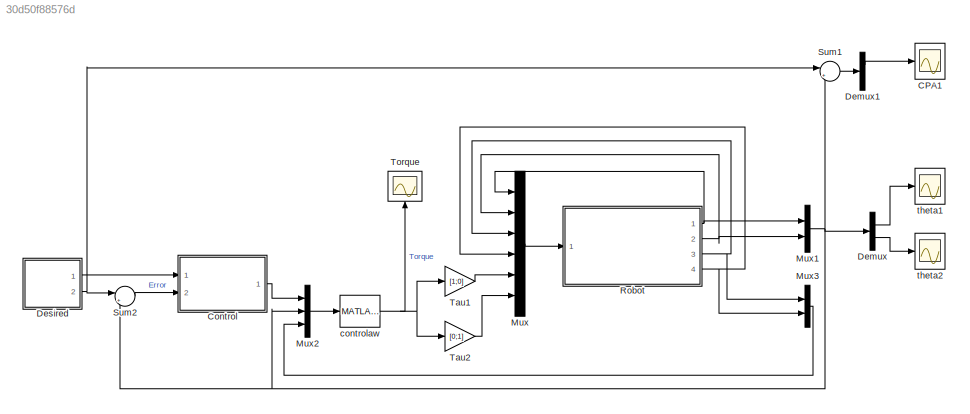
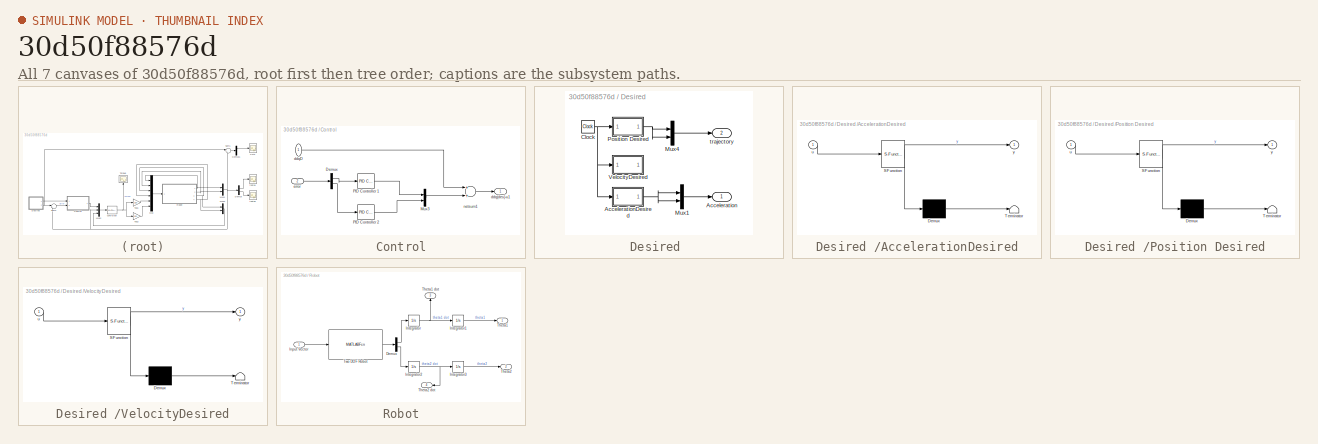
[diagram: thumbnail index - all 7 canvases of the model, root first then tree order]
MODEL slx_30d50f88576d
KIND model
BLOCK [Scope] CPA1
  DataFormat = StructureWithTime
  Floating = off
  NumInputPorts = 1
  Ports = [1]
  SampleTime = 0
  SaveName = ScopeData4
  ShowLegends = off
  YMax = 100
  YMin = -1400
BLOCK [SubSystem] Control
  FunctionWithSeparateData = off
  MaskHideContents = off
  MinAlgLoopOccurrences = off
  Opaque = off
  Ports = [2, 1]
  PropExecContextOutsideSubsystem = off
  RTWSystemCode = Auto
  RequestExecContextInheritance = off
BLOCK [Demux] Control/Demux
  DisplayOption = bar
  Outputs = 2
  Ports = [1, 2]
BLOCK [Mux] Control/Mux3
  DisplayOption = bar
  Inputs = 2
  Ports = [2, 1]
BLOCK [Reference] Control/PID Controller 1  REF=simulink/Continuous/PID Controller
  AntiWindupMode = none
  Controller = PID
  D = 3000
  DOutDataTypeStr = Inherit: Inherit via internal rule
  DOutMax = []
  DOutMin = []
  DParamDataTypeStr = Inherit: Inherit via internal rule
  DParamMax = []
  DParamMin = []
  ExternalReset = none
  FilterContinuousStateAttributes = ''
  FilterMethod = Forward Euler
  FilterOutDataTypeStr = Inherit: Inherit via internal rule
  FilterOutMax = []
  FilterOutMin = []
  FilterRTWStateStorageClass = Auto
  FilterStateMustResolveToSignalObject = off
  Form = Parallel
  I = 800
  IOutDataTypeStr = Inherit: Inherit via internal rule
  IOutMax = []
  IOutMin = []
  IParamDataTypeStr = Inherit: Inherit via internal rule
  IParamMax = []
  IParamMin = []
  IgnoreLimit = off
  InitialConditionForFilter = 0
  InitialConditionForIntegrator = 0
  InitialConditionSource = internal
  IntegratorContinuousStateAttributes = ''
  IntegratorMethod = Forward Euler
  IntegratorOutDataTypeStr = Inherit: Inherit via internal rule
  IntegratorOutMax = []
  IntegratorOutMin = []
  IntegratorRTWStateStorageClass = Auto
  IntegratorStateMustResolveToSignalObject = off
  Kb = 1
  KbOutDataTypeStr = Inherit: Inherit via internal rule
  KbOutMax = []
  KbOutMin = []
  KbParamDataTypeStr = Inherit: Inherit via internal rule
  KbParamMax = []
  KbParamMin = []
  Kt = 1
  KtOutDataTypeStr = Inherit: Inherit via internal rule
  KtOutMax = []
  KtOutMin = []
  KtParamDataTypeStr = Inherit: Inherit via internal rule
  KtParamMax = []
  KtParamMin = []
  LimitOutput = off
  LinearizeAsGain = on
  LockScale = off
  LowerSaturationLimit = -inf
  N = 287.53756707028
  NOutDataTypeStr = Inherit: Inherit via internal rule
  NOutMax = []
  NOutMin = []
  NParamDataTypeStr = Inherit: Inherit via internal rule
  NParamMax = []
  NParamMin = []
  P = 1500
  POutDataTypeStr = Inherit: Inherit via internal rule
  POutMax = []
  POutMin = []
  PParamDataTypeStr = Inherit: Inherit via internal rule
  PParamMax = []
  PParamMin = []
  Ports = [1, 1]
  RndMeth = Floor
  SampleTime = 1
  SaturateOnIntegerOverflow = off
  SaturationOutDataTypeStr = Inherit: Same as input
  SaturationOutMax = []
  SaturationOutMin = []
  SourceBlock = simulink/Continuous/PID Controller
  SourceType = PID 1dof
  SumAccumDataTypeStr = Inherit: Inherit via internal rule
  SumDAccumDataTypeStr = Inherit: Inherit via internal rule
  SumDOutDataTypeStr = Inherit: Inherit via internal rule
  SumDOutMax = []
  SumDOutMin = []
  SumI1AccumDataTypeStr = Inherit: Inherit via internal rule
  SumI1OutDataTypeStr = Inherit: Inherit via internal rule
  SumI1OutMax = []
  SumI1OutMin = []
  SumI2AccumDataTypeStr = Inherit: Inherit via internal rule
  SumI2OutDataTypeStr = Inherit: Inherit via internal rule
  SumI2OutMax = []
  SumI2OutMin = []
  SumI3AccumDataTypeStr = Inherit: Inherit via internal rule
  SumI3OutDataTypeStr = Inherit: Inherit via internal rule
  SumI3OutMax = []
  SumI3OutMin = []
  SumOutDataTypeStr = Inherit: Inherit via internal rule
  SumOutMax = []
  SumOutMin = []
  TimeDomain = Continuous-time
  TrackingMode = off
  UpperSaturationLimit = inf
  ZeroCross = on
BLOCK [Reference] Control/PID Controller 2  REF=simulink/Continuous/PID Controller
  AntiWindupMode = none
  Controller = PID
  D = 1
  DOutDataTypeStr = Inherit: Inherit via internal rule
  DOutMax = []
  DOutMin = []
  DParamDataTypeStr = Inherit: Inherit via internal rule
  DParamMax = []
  DParamMin = []
  ExternalReset = none
  FilterContinuousStateAttributes = ''
  FilterMethod = Forward Euler
  FilterOutDataTypeStr = Inherit: Inherit via internal rule
  FilterOutMax = []
  FilterOutMin = []
  FilterRTWStateStorageClass = Auto
  FilterStateMustResolveToSignalObject = off
  Form = Parallel
  I = 1
  IOutDataTypeStr = Inherit: Inherit via internal rule
  IOutMax = []
  IOutMin = []
  IParamDataTypeStr = Inherit: Inherit via internal rule
  IParamMax = []
  IParamMin = []
  IgnoreLimit = off
  InitialConditionForFilter = 0
  InitialConditionForIntegrator = 0
  InitialConditionSource = internal
  IntegratorContinuousStateAttributes = ''
  IntegratorMethod = Forward Euler
  IntegratorOutDataTypeStr = Inherit: Inherit via internal rule
  IntegratorOutMax = []
  IntegratorOutMin = []
  IntegratorRTWStateStorageClass = Auto
  IntegratorStateMustResolveToSignalObject = off
  Kb = 1
  KbOutDataTypeStr = Inherit: Inherit via internal rule
  KbOutMax = []
  KbOutMin = []
  KbParamDataTypeStr = Inherit: Inherit via internal rule
  KbParamMax = []
  KbParamMin = []
  Kt = 1
  KtOutDataTypeStr = Inherit: Inherit via internal rule
  KtOutMax = []
  KtOutMin = []
  KtParamDataTypeStr = Inherit: Inherit via internal rule
  KtParamMax = []
  KtParamMin = []
  LimitOutput = off
  LinearizeAsGain = on
  LockScale = off
  LowerSaturationLimit = -inf
  N = 1
  NOutDataTypeStr = Inherit: Inherit via internal rule
  NOutMax = []
  NOutMin = []
  NParamDataTypeStr = Inherit: Inherit via internal rule
  NParamMax = []
  NParamMin = []
  P = 1
  POutDataTypeStr = Inherit: Inherit via internal rule
  POutMax = []
  POutMin = []
  PParamDataTypeStr = Inherit: Inherit via internal rule
  PParamMax = []
  PParamMin = []
  Ports = [1, 1]
  RndMeth = Floor
  SampleTime = 1
  SaturateOnIntegerOverflow = off
  SaturationOutDataTypeStr = Inherit: Same as input
  SaturationOutMax = []
  SaturationOutMin = []
  SourceBlock = simulink/Continuous/PID Controller
  SourceType = PID 1dof
  SumAccumDataTypeStr = Inherit: Inherit via internal rule
  SumDAccumDataTypeStr = Inherit: Inherit via internal rule
  SumDOutDataTypeStr = Inherit: Inherit via internal rule
  SumDOutMax = []
  SumDOutMin = []
  SumI1AccumDataTypeStr = Inherit: Inherit via internal rule
  SumI1OutDataTypeStr = Inherit: Inherit via internal rule
  SumI1OutMax = []
  SumI1OutMin = []
  SumI2AccumDataTypeStr = Inherit: Inherit via internal rule
  SumI2OutDataTypeStr = Inherit: Inherit via internal rule
  SumI2OutMax = []
  SumI2OutMin = []
  SumI3AccumDataTypeStr = Inherit: Inherit via internal rule
  SumI3OutDataTypeStr = Inherit: Inherit via internal rule
  SumI3OutMax = []
  SumI3OutMin = []
  SumOutDataTypeStr = Inherit: Inherit via internal rule
  SumOutMax = []
  SumOutMin = []
  TimeDomain = Continuous-time
  TrackingMode = off
  UpperSaturationLimit = inf
  ZeroCross = on
BLOCK [Outport] Control/ddq(des)-u1
  IconDisplay = Port number
BLOCK [Inport] Control/ddqD
  IconDisplay = Port number
BLOCK [Inport] Control/error
  IconDisplay = Port number
  Port = 2
BLOCK [Sum] Control/netsum1
  Inputs = 2
  Ports = [2, 1]
BLOCK [Demux] Demux
  DisplayOption = bar
  Outputs = 2
  Ports = [1, 2]
BLOCK [Demux] Demux1
  DisplayOption = bar
  Outputs = 2
  Ports = [1, 2]
BLOCK [SubSystem] Desired 
  FunctionWithSeparateData = off
  MaskHideContents = off
  MinAlgLoopOccurrences = off
  Opaque = off
  Ports = [0, 2]
  PropExecContextOutsideSubsystem = off
  RTWSystemCode = Auto
  RequestExecContextInheritance = off
BLOCK [Outport] Desired /Acceleration
  IconDisplay = Port number
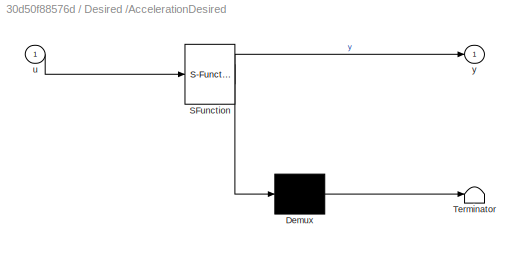
BLOCK [SubSystem] Desired /AccelerationDesired
  ErrorFcn = Stateflow.Translate.translate
  FunctionWithSeparateData = off
  MaskHideContents = off
  MinAlgLoopOccurrences = off
  Opaque = off
  PermitHierarchicalResolution = ExplicitOnly
  Ports = [1, 1]
  PropExecContextOutsideSubsystem = off
  RTWSystemCode = Auto
  RequestExecContextInheritance = off
  SFBlockType = MATLAB Function
  TreatAsAtomicUnit = on
BLOCK [Demux] Desired /AccelerationDesired/ Demux 
  Outputs = 1
  Ports = [1, 1]
BLOCK [S-Function] Desired /AccelerationDesired/ SFunction 
  EnableBusSupport = on
  FunctionName = sf_sfun
  PortCounts = [1 2]
  Ports = [1, 2]
  Tag = Stateflow S-Function TwoDOFRobotDynCon 3
BLOCK [Terminator] Desired /AccelerationDesired/ Terminator 
BLOCK [Inport] Desired /AccelerationDesired/u
  IconDisplay = Port number
BLOCK [Outport] Desired /AccelerationDesired/y
  IconDisplay = Port number
BLOCK [Clock] Desired /Clock
BLOCK [Mux] Desired /Mux1
  DisplayOption = bar
  Inputs = 2
  Ports = [2, 1]
BLOCK [Mux] Desired /Mux4
  DisplayOption = bar
  Inputs = 2
  Ports = [2, 1]
BLOCK [SubSystem] Desired /Position Desired
  ErrorFcn = Stateflow.Translate.translate
  FunctionWithSeparateData = off
  MaskHideContents = off
  MinAlgLoopOccurrences = off
  Opaque = off
  PermitHierarchicalResolution = ExplicitOnly
  Ports = [1, 1]
  PropExecContextOutsideSubsystem = off
  RTWSystemCode = Auto
  RequestExecContextInheritance = off
  SFBlockType = MATLAB Function
  TreatAsAtomicUnit = on
BLOCK [Demux] Desired /Position Desired/ Demux 
  Outputs = 1
  Ports = [1, 1]
BLOCK [S-Function] Desired /Position Desired/ SFunction 
  EnableBusSupport = on
  FunctionName = sf_sfun
  PortCounts = [1 2]
  Ports = [1, 2]
  Tag = Stateflow S-Function TwoDOFRobotDynCon 2
BLOCK [Terminator] Desired /Position Desired/ Terminator 
BLOCK [Inport] Desired /Position Desired/u
  IconDisplay = Port number
BLOCK [Outport] Desired /Position Desired/y
  IconDisplay = Port number
BLOCK [SubSystem] Desired /VelocityDesired
  ErrorFcn = Stateflow.Translate.translate
  FunctionWithSeparateData = off
  MaskHideContents = off
  MinAlgLoopOccurrences = off
  Opaque = off
  PermitHierarchicalResolution = ExplicitOnly
  Ports = [1, 1]
  PropExecContextOutsideSubsystem = off
  RTWSystemCode = Auto
  RequestExecContextInheritance = off
  SFBlockType = MATLAB Function
  TreatAsAtomicUnit = on
BLOCK [Demux] Desired /VelocityDesired/ Demux 
  Outputs = 1
  Ports = [1, 1]
BLOCK [S-Function] Desired /VelocityDesired/ SFunction 
  EnableBusSupport = on
  FunctionName = sf_sfun
  PortCounts = [1 2]
  Ports = [1, 2]
  Tag = Stateflow S-Function TwoDOFRobotDynCon 4
BLOCK [Terminator] Desired /VelocityDesired/ Terminator 
BLOCK [Inport] Desired /VelocityDesired/u
  IconDisplay = Port number
BLOCK [Outport] Desired /VelocityDesired/y
  IconDisplay = Port number
BLOCK [Outport] Desired /trajectory
  IconDisplay = Port number
  Port = 2
BLOCK [Mux] Mux
  DisplayOption = bar
  Inputs = 6
  Ports = [6, 1]
BLOCK [Mux] Mux1
  DisplayOption = bar
  Inputs = 2
  Ports = [2, 1]
BLOCK [Mux] Mux2
  DisplayOption = bar
  Inputs = 3
  Ports = [3, 1]
BLOCK [Mux] Mux3
  DisplayOption = bar
  Inputs = 2
  Ports = [2, 1]
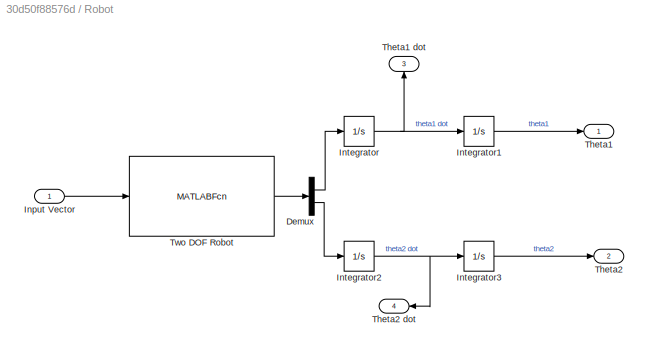
BLOCK [SubSystem] Robot
  FunctionWithSeparateData = off
  MaskHideContents = off
  MinAlgLoopOccurrences = off
  Opaque = off
  Ports = [1, 4]
  PropExecContextOutsideSubsystem = off
  RTWSystemCode = Auto
  RequestExecContextInheritance = off
BLOCK [Demux] Robot/Demux
  DisplayOption = bar
  Outputs = 2
  Ports = [1, 2]
BLOCK [Inport] Robot/Input Vector
  IconDisplay = Port number
BLOCK [Integrator] Robot/Integrator
  Ports = [1, 1]
BLOCK [Integrator] Robot/Integrator1
  Ports = [1, 1]
BLOCK [Integrator] Robot/Integrator2
  Ports = [1, 1]
BLOCK [Integrator] Robot/Integrator3
  Ports = [1, 1]
BLOCK [Outport] Robot/Theta1 
  IconDisplay = Port number
BLOCK [Outport] Robot/Theta1 dot
  IconDisplay = Port number
  Port = 3
BLOCK [Outport] Robot/Theta2
  IconDisplay = Port number
  Port = 2
BLOCK [Outport] Robot/Theta2 dot
  IconDisplay = Port number
  Port = 4
BLOCK [MATLABFcn] Robot/Two DOF Robot
  MATLABFcn = twodofdyn
  OutputDimensions = 2
  Ports = [1, 1]
BLOCK [Sum] Sum1
  IconShape = round
  InputSameDT = off
  Inputs = |+-
  OutDataTypeStr = Inherit: Inherit via internal rule
  Ports = [2, 1]
  SaturateOnIntegerOverflow = off
BLOCK [Sum] Sum2
  IconShape = round
  InputSameDT = off
  Inputs = |+-
  OutDataTypeStr = Inherit: Inherit via internal rule
  Ports = [2, 1]
  SaturateOnIntegerOverflow = off
BLOCK [Gain] Tau1
  Gain = [1;0]
  OutDataTypeStr = Inherit: Inherit via internal rule
  ParamDataTypeStr = Inherit: Inherit via internal rule
  SaturateOnIntegerOverflow = off
BLOCK [Gain] Tau2
  Gain = [0;1]
  OutDataTypeStr = Inherit: Inherit via internal rule
  ParamDataTypeStr = Inherit: Inherit via internal rule
  SaturateOnIntegerOverflow = off
BLOCK [Scope] Torque
  DataFormat = StructureWithTime
  Floating = off
  NumInputPorts = 1
  Ports = [1]
  SampleTime = 0
  SaveName = ScopeData1
  ShowLegends = off
BLOCK [MATLABFcn] controlaw
  MATLABFcn = controllaw
  OutputDimensions = 2
  Ports = [1, 1]
BLOCK [Scope] theta1
  DataFormat = StructureWithTime
  Floating = off
  NumInputPorts = 1
  Ports = [1]
  SampleTime = 0
  SaveName = ScopeData2
  ShowLegends = off
  YMax = -7500
  YMin = -50000
BLOCK [Scope] theta2
  DataFormat = StructureWithTime
  Floating = off
  NumInputPorts = 1
  Ports = [1]
  SampleTime = 0
  ShowLegends = off
  YMax = 10000
  YMin = 0
LINE Control/Demux:1 -> Control/PID Controller 1:1
LINE Control/Demux:2 -> Control/PID Controller 2:1
LINE Control/Mux3:1 -> Control/netsum1:2
LINE Control/PID Controller 1:1 -> Control/Mux3:1
LINE Control/PID Controller 2:1 -> Control/Mux3:2
LINE Control/ddqD:1 -> Control/netsum1:1
LINE Control/error:1 -> Control/Demux:1
LINE Control/netsum1:1 -> Control/ddq(des)-u1:1
LINE Control:1 -> Mux2:1
LINE Demux1:1 -> CPA1:1
LINE Demux:1 -> theta1:1
LINE Demux:2 -> theta2:1
NET Desired /AccelerationDesired:1 -> Desired /Mux1:1, Desired /Mux1:2
NET Desired /Clock:1 -> Desired /AccelerationDesired:1, Desired /Position Desired:1, Desired /VelocityDesired:1
LINE Desired /Mux1:1 -> Desired /Acceleration:1
LINE Desired /Mux4:1 -> Desired /trajectory:1
NET Desired /Position Desired:1 -> Desired /Mux4:1, Desired /Mux4:2
LINE Desired :1 -> Control:1
NET Desired :2 -> Sum1:1, Sum2:1
NET Mux1:1 -> Demux:1, Mux2:2, Sum1:2, Sum2:2
LINE Mux2:1 -> controlaw:1
LINE Mux3:1 -> Mux2:3
LINE Mux:1 -> Robot:1
LINE Robot/Demux:1 -> Robot/Integrator:1
LINE Robot/Demux:2 -> Robot/Integrator2:1
LINE Robot/Input Vector:1 -> Robot/Two DOF Robot:1
LINE Robot/Integrator1:1 -> Robot/Theta1 :1
NET Robot/Integrator2:1 -> Robot/Integrator3:1, Robot/Theta2 dot:1
LINE Robot/Integrator3:1 -> Robot/Theta2:1
NET Robot/Integrator:1 -> Robot/Integrator1:1, Robot/Theta1 dot:1
LINE Robot/Two DOF Robot:1 -> Robot/Demux:1
NET Robot:1 -> Mux1:1, Mux:1
NET Robot:2 -> Mux1:2, Mux:2
NET Robot:3 -> Mux3:1, Mux:3
NET Robot:4 -> Mux3:2, Mux:4
LINE Sum1:1 -> Demux1:1
LINE Sum2:1 -> Control:2
LINE Tau1:1 -> Mux:5
LINE Tau2:1 -> Mux:6
NET controlaw:1 -> Tau1:1, Tau2:1, Torque:1
note: NET lines group one-source signal fan-out (src -> all destinations, sorted); 1:1 wires keep LINE
